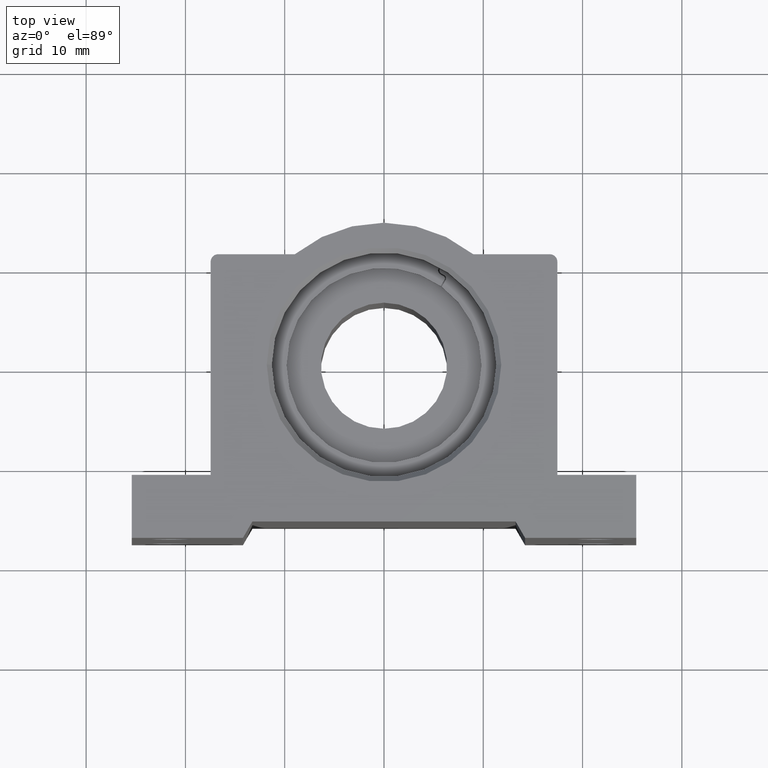
[diagram: clean part render]
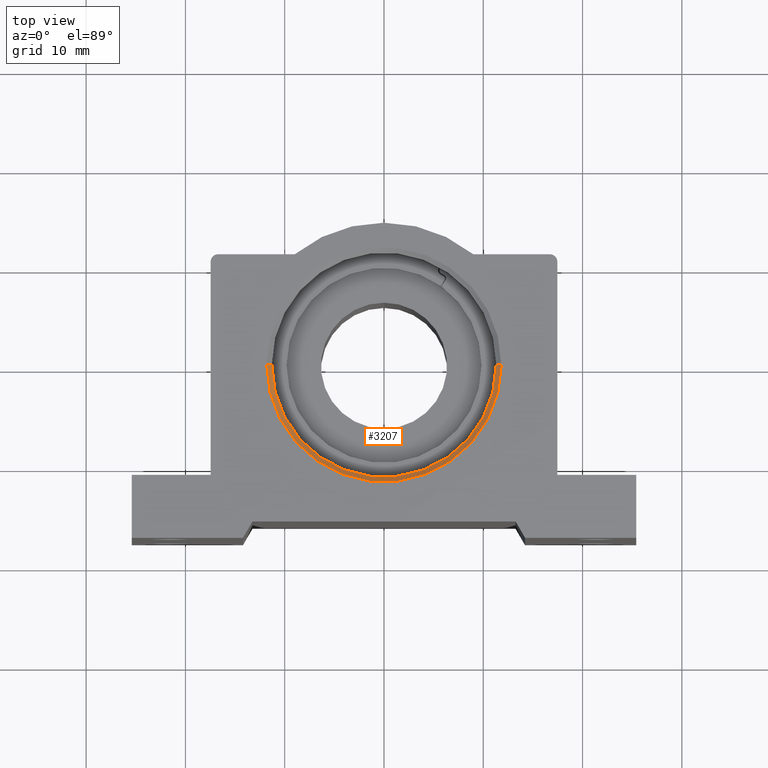
[diagram: same view with one face highlighted and labeled with its STEP entity id]
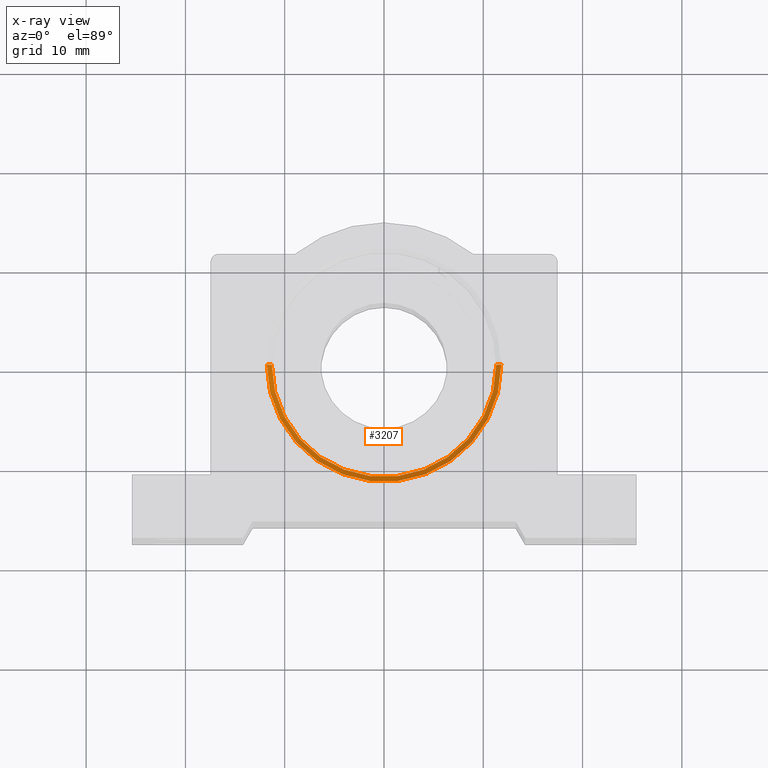
[diagram: x-ray of the same camera — body ghosted, the highlighted face saturated]
A machine part, top view. The second image highlights one B-rep face of the part: STEP entity #3207.
The next image is the same camera in x-ray: the body ghosted, the highlighted face saturated — about 0% of this face is hidden behind the body in this view.
In plain terms, the highlighted conical surface has half-angle 45 deg.
Its self-contained STEP definition (entity closure, byte-faithful):
#302 = ORIENTED_EDGE ( 'NONE', *, *, #2249, .F. ) ;
#316 = DIRECTION ( 'NONE',  ( 0.0000000000000000000, -0.0000000000000000000, -1.000000000000000000 ) ) ;
#377 = CIRCLE ( 'NONE', #1240, 0.4649999999999997469 ) ;
#521 = CARTESIAN_POINT ( 'NONE',  ( 0.4450000000000000067, 0.0000000000000000000, 0.8240000000000002878 ) ) ;
#592 = CARTESIAN_POINT ( 'NONE',  ( 0.4450000000000000067, 0.0000000000000000000, 0.8240000000000002878 ) ) ;
#783 = CARTESIAN_POINT ( 'NONE',  ( 0.0000000000000000000, 0.0000000000000000000, 0.8240000000000002878 ) ) ;
#805 = EDGE_CURVE ( 'NONE', #2639, #1769, #377, .T. ) ;
#858 = CARTESIAN_POINT ( 'NONE',  ( 0.0000000000000000000, 0.0000000000000000000, 0.8240000000000002878 ) ) ;
#915 = DIRECTION ( 'NONE',  ( 0.7071067811865511255, 0.0000000000000000000, 0.7071067811865439090 ) ) ;
#917 = CARTESIAN_POINT ( 'NONE',  ( -0.4649999999999997469, 5.694607616035189665E-17, 0.8439999999999997504 ) ) ;
#971 = VECTOR ( 'NONE', #915, 39.37007874015748143 ) ;
#1023 = VECTOR ( 'NONE', #2885, 39.37007874015748143 ) ;
#1137 = CARTESIAN_POINT ( 'NONE',  ( 0.4649999999999997469, 0.0000000000000000000, 0.8439999999999997504 ) ) ;
#1220 = AXIS2_PLACEMENT_3D ( 'NONE', #858, #1857, #1846 ) ;
#1240 = AXIS2_PLACEMENT_3D ( 'NONE', #1409, #316, #3745 ) ;
#1242 = ORIENTED_EDGE ( 'NONE', *, *, #2651, .F. ) ;
#1409 = CARTESIAN_POINT ( 'NONE',  ( 0.0000000000000000000, 0.0000000000000000000, 0.8439999999999997504 ) ) ;
#1677 = DIRECTION ( 'NONE',  ( 1.000000000000000000, 0.0000000000000000000, 0.0000000000000000000 ) ) ;
#1769 = VERTEX_POINT ( 'NONE', #917 ) ;
#1846 = DIRECTION ( 'NONE',  ( 1.000000000000000000, 0.0000000000000000000, 0.0000000000000000000 ) ) ;
#1855 = AXIS2_PLACEMENT_3D ( 'NONE', #783, #2641, #1677 ) ;
#1857 = DIRECTION ( 'NONE',  ( 0.0000000000000000000, 0.0000000000000000000, 1.000000000000000000 ) ) ;
#2162 = VERTEX_POINT ( 'NONE', #521 ) ;
#2176 = FACE_OUTER_BOUND ( 'NONE', #3090, .T. ) ;
#2249 = EDGE_CURVE ( 'NONE', #2162, #2639, #2851, .T. ) ;
#2260 = ORIENTED_EDGE ( 'NONE', *, *, #3510, .T. ) ;
#2462 = CARTESIAN_POINT ( 'NONE',  ( -0.4450000000000000067, 5.449678256205722031E-17, 0.8240000000000002878 ) ) ;
#2594 = CARTESIAN_POINT ( 'NONE',  ( -0.4450000000000000067, 5.449678256205722031E-17, 0.8240000000000002878 ) ) ;
#2639 = VERTEX_POINT ( 'NONE', #1137 ) ;
#2641 = DIRECTION ( 'NONE',  ( 0.0000000000000000000, 0.0000000000000000000, 1.000000000000000000 ) ) ;
#2651 = EDGE_CURVE ( 'NONE', #3131, #2162, #3987, .T. ) ;
#2851 = LINE ( 'NONE', #592, #971 ) ;
#2885 = DIRECTION ( 'NONE',  ( -0.7071067811865511255, 8.659560562354977232E-17, 0.7071067811865439090 ) ) ;
#3090 = EDGE_LOOP ( 'NONE', ( #1242, #2260, #3565, #302 ) ) ;
#3110 = LINE ( 'NONE', #2594, #1023 ) ;
#3131 = VERTEX_POINT ( 'NONE', #2462 ) ;
#3207 = ADVANCED_FACE ( 'NONE', ( #2176 ), #3838, .F. ) ;
#3510 = EDGE_CURVE ( 'NONE', #3131, #1769, #3110, .T. ) ;
#3565 = ORIENTED_EDGE ( 'NONE', *, *, #805, .F. ) ;
#3745 = DIRECTION ( 'NONE',  ( 1.000000000000000000, 0.0000000000000000000, 0.0000000000000000000 ) ) ;
#3838 = CONICAL_SURFACE ( 'NONE', #1220, 0.4450000000000000067, 0.7853981633974533860 ) ;
#3987 = CIRCLE ( 'NONE', #1855, 0.4450000000000000067 ) ;